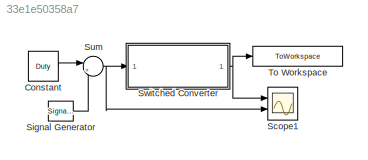
MODEL slx_33e1e50358a7
KIND model
CONFIG AbsTol = auto
CONFIG EnableMultiTasking = off
CONFIG FixedStep = auto
CONFIG MaxStep = auto
CONFIG MinStep = auto
CONFIG RelTol = 1e-3
CONFIG SampleTimeConstraint = Unconstrained
CONFIG SolverName = ode23t
CONFIG StartTime = 0.0
CONFIG StopTime = 50e-3
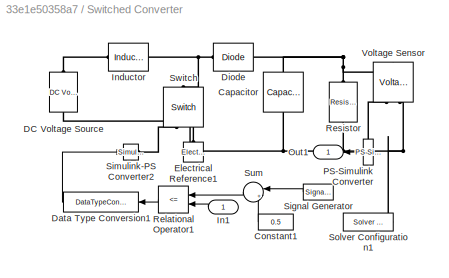
BLOCK [SubSystem]  Switched Converter 
  Ports = [1, 1]
  RequestExecContextInheritance = off
BLOCK [Reference]  Switched Converter /Capacitor  REF=fl_lib/Electrical/Electrical Elements/Capacitor
  NameLocation = left
  Ports = [0, 0, 0, 0, 0, 1, 1]
  SourceBlock = fl_lib/Electrical/Electrical Elements/Capacitor
  SourceProductBaseCode = SS
  SourceType = Capacitor
BLOCK [Constant]  Switched Converter /Constant1
  SampleTime = sampling
  Value = 0.5
BLOCK [Reference]  Switched Converter /DC Voltage Source  REF=fl_lib/Electrical/Electrical Sources/DC Voltage Source
  NameLocation = right
  Ports = [0, 0, 0, 0, 0, 1, 1]
  SourceBlock = fl_lib/Electrical/Electrical Sources/DC Voltage Source
  SourceProductBaseCode = SS
  SourceType = DC Voltage Source
BLOCK [DataTypeConversion]  Switched Converter /Data Type Conversion1
  OutDataTypeStr = double
  RndMeth = Floor
  SaturateOnIntegerOverflow = off
BLOCK [Reference]  Switched Converter /Diode  REF=fl_lib/Electrical/Electrical Elements/Diode
  Ports = [0, 0, 0, 0, 0, 1, 1]
  SourceBlock = fl_lib/Electrical/Electrical Elements/Diode
  SourceProductBaseCode = SS
  SourceType = Diode
BLOCK [Reference]  Switched Converter /Electrical Reference1  REF=fl_lib/Electrical/Electrical Elements/Electrical Reference
  NameLocation = right
  Ports = [0, 0, 0, 0, 0, 1]
  SourceBlock = fl_lib/Electrical/Electrical Elements/Electrical Reference
  SourceProductBaseCode = SS
  SourceType = Electrical Reference
BLOCK [Inport]  Switched Converter /In1
BLOCK [Reference]  Switched Converter /Inductor  REF=fl_lib/Electrical/Electrical Elements/Inductor
  Ports = [0, 0, 0, 0, 0, 1, 1]
  SourceBlock = fl_lib/Electrical/Electrical Elements/Inductor
  SourceProductBaseCode = SS
  SourceType = Inductor
BLOCK [Outport]  Switched Converter /Out1
BLOCK [Reference]  Switched Converter /PS-Simulink Converter  REF=nesl_utility/PS-Simulink
Converter
  Ports = [0, 1, 0, 0, 0, 1]
  SourceBlock = nesl_utility/PS-Simulink\nConverter
  SourceProductBaseCode = PW,SS
  SourceType = PS-Simulink\nConverter
BLOCK [RelationalOperator]  Switched Converter /Relational Operator1
  InputSameDT = off
  Operator = <=
  OutDataTypeStr = boolean
  Ports = [2, 1]
  RndMeth = Simplest
BLOCK [Reference]  Switched Converter /Resistor  REF=fl_lib/Electrical/Electrical Elements/Resistor
  NameLocation = left
  Ports = [0, 0, 0, 0, 0, 1, 1]
  SourceBlock = fl_lib/Electrical/Electrical Elements/Resistor
  SourceProductBaseCode = SS
  SourceType = Resistor
BLOCK [SignalGenerator]  Switched Converter /Signal Generator
  Amplitude = 0.5
  Frequency = 50e3
  Ports = [0, 1]
  WaveForm = sawtooth
BLOCK [Reference]  Switched Converter /Simulink-PS Converter2  REF=nesl_utility/Simulink-PS
Converter
  Ports = [1, 0, 0, 0, 0, 0, 1]
  SourceBlock = nesl_utility/Simulink-PS\nConverter
  SourceProductBaseCode = PW,SS
  SourceType = Simulink-PS\nConverter
BLOCK [Reference]  Switched Converter /Solver Configuration1  REF=nesl_utility/Solver
Configuration
  Ports = [0, 0, 0, 0, 0, 0, 1]
  SourceBlock = nesl_utility/Solver\nConfiguration
  SourceProductBaseCode = PW,SS
  SourceType = Solver\nConfiguration
BLOCK [Sum]  Switched Converter /Sum
  Inputs = |++
  Ports = [2, 1]
BLOCK [Reference]  Switched Converter /Switch  REF=fl_lib/Electrical/Electrical Elements/Switch
  NameLocation = right
  Ports = [0, 0, 0, 0, 0, 1, 2]
  SourceBlock = fl_lib/Electrical/Electrical Elements/Switch
  SourceProductBaseCode = SS
  SourceType = Switch
BLOCK [Reference]  Switched Converter /Voltage Sensor  REF=fl_lib/Electrical/Electrical Sensors/Voltage Sensor
  NameLocation = right
  Ports = [0, 0, 0, 0, 0, 1, 2]
  SourceBlock = fl_lib/Electrical/Electrical Sensors/Voltage Sensor
  SourceProductBaseCode = SS
  SourceType = Voltage Sensor
BLOCK [Constant] Constant
  SampleTime = sampling
  Value = Duty
  VectorParams1D = off
BLOCK [Scope] Scope1
  Floating = off
  NumInputPorts = 2
  Ports = [2]
  ScopeSpecificationString = Simulink.scopes.TimeScopeBlockCfg('CurrentConfiguration', extmgr.ConfigurationSet(extmgr.Configuration('Core','General UI',true),extmgr.Configuration('Core','Source UI',true),extmgr.Configuration('Sources','WiredSimulink',true,'DataLoggingVariableName','ScopeData1'),extmgr.Configuration('Visuals','Time Domain',true,'SerializedDisplays',{struct('MinYLimReal','-3.71313','MaxYLimReal','33.41816','YLa...<+1485ch>
BLOCK [SignalGenerator] Signal Generator
  Amplitude = amp_bode
  Frequency = freq_bode
  Ports = [0, 1]
BLOCK [Sum] Sum
  Inputs = |++
  Ports = [2, 1]
BLOCK [ToWorkspace] To Workspace
  FixptAsFi = on
  MaxDataPoints = inf
  Ports = [1]
  SampleTime = -1
  SaveFormat = Structure With Time
  VariableName = Vcp_converter
LINE  Switched Converter /Constant1:1 ->  Switched Converter /Sum:2
LINE  Switched Converter /Data Type Conversion1:1 ->  Switched Converter /Simulink-PS Converter2:1
LINE  Switched Converter /In1:1 ->  Switched Converter /Relational Operator1:2
LINE  Switched Converter /PS-Simulink Converter:1 ->  Switched Converter /Out1:1
LINE  Switched Converter /Relational Operator1:1 ->  Switched Converter /Data Type Conversion1:1
LINE  Switched Converter /Signal Generator:1 ->  Switched Converter /Sum:1
LINE  Switched Converter /Sum:1 ->  Switched Converter /Relational Operator1:1
NET  Switched Converter :1 -> Scope1:1, To Workspace:1
LINE Constant:1 -> Sum:1
LINE Signal Generator:1 -> Sum:2
NET Sum:1 ->  Switched Converter :1, Scope1:2
PNET net1:  Switched Converter /Capacitor:LConn1 --  Switched Converter /Diode:RConn1 --  Switched Converter /Resistor:LConn1 --  Switched Converter /Voltage Sensor:LConn1
PNET net2:  Switched Converter /Capacitor:RConn1 --  Switched Converter /DC Voltage Source:RConn1 --  Switched Converter /Electrical Reference1:LConn1 --  Switched Converter /Resistor:RConn1 --  Switched Converter /Solver Configuration1:RConn1 --  Switched Converter /Switch:RConn2 --  Switched Converter /Voltage Sensor:RConn2
PLINE  Switched Converter /DC Voltage Source:LConn1 --  Switched Converter /Inductor:LConn1
PNET net3:  Switched Converter /Diode:LConn1 --  Switched Converter /Inductor:RConn1 --  Switched Converter /Switch:LConn1
PLINE  Switched Converter /PS-Simulink Converter:LConn1 --  Switched Converter /Voltage Sensor:RConn1
PLINE  Switched Converter /Simulink-PS Converter2:RConn1 --  Switched Converter /Switch:RConn1
note: NET lines group one-source signal fan-out (src -> all destinations, sorted); 1:1 wires keep LINE; PNET lines group multi-terminal physical nets as a canonical sorted terminal list (undirected conserving connections); 2-terminal nets keep the pairwise PLINE form
